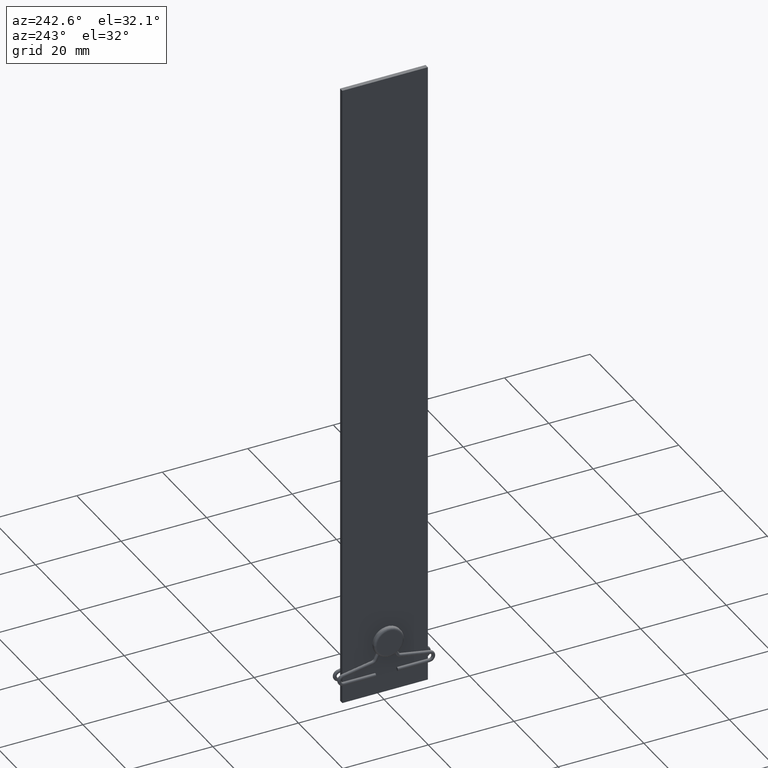
[diagram: clean part render]
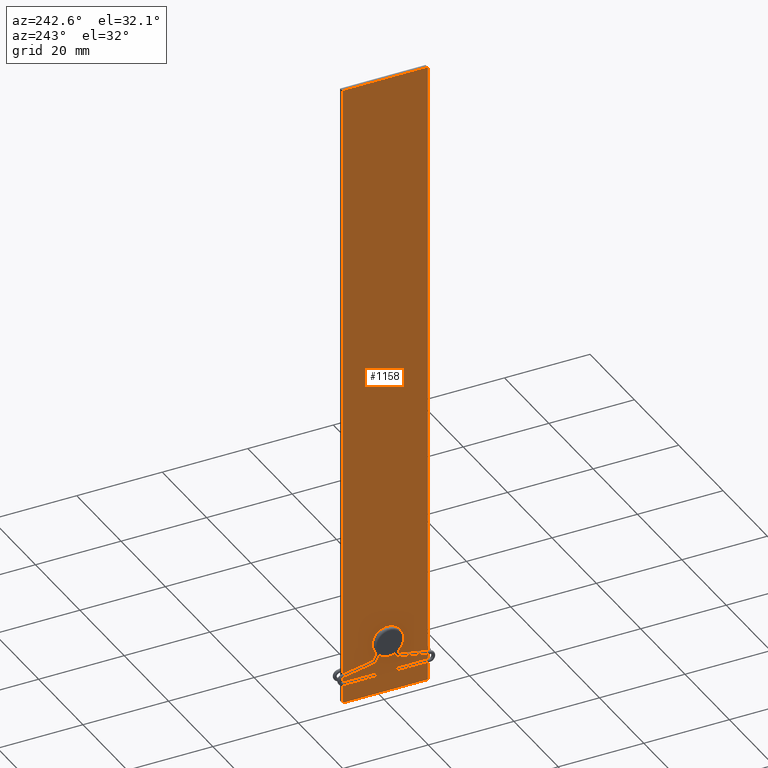
[diagram: same view with one face highlighted and labeled with its STEP entity id]
A machine part, auxiliary view. The second image highlights one B-rep face of the part: STEP entity #1158.
In plain terms, the highlighted planar face has unit normal (1, 0, -0).
Its self-contained STEP definition (entity closure, byte-faithful):
#10 = VERTEX_POINT ( 'NONE', #123 ) ;
#11 = EDGE_CURVE ( 'NONE', #1700, #1513, #2385, .T. ) ;
#42 = PLANE ( 'NONE',  #2883 ) ;
#53 = VECTOR ( 'NONE', #580, 1000.000000000000000 ) ;
#123 = CARTESIAN_POINT ( 'NONE',  ( -0.4999999999999987232, -10.00000000000000000, 150.0000000000000000 ) ) ;
#232 = CARTESIAN_POINT ( 'NONE',  ( -0.5000000000000012212, 10.00000000000000000, 150.0000000000000000 ) ) ;
#278 = DIRECTION ( 'NONE',  ( 1.000000000000000000, 1.246832498358330099E-16, -0.000000000000000000 ) ) ;
#396 = AXIS2_PLACEMENT_3D ( 'NONE', #1000, #1444, #2424 ) ;
#408 = ORIENTED_EDGE ( 'NONE', *, *, #2268, .F. ) ;
#424 = EDGE_LOOP ( 'NONE', ( #2773, #2246, #408, #1952 ) ) ;
#442 = VECTOR ( 'NONE', #2723, 1000.000000000000000 ) ;
#505 = DIRECTION ( 'NONE',  ( 1.246832498358330099E-16, -1.000000000000000000, 0.000000000000000000 ) ) ;
#526 = VERTEX_POINT ( 'NONE', #2019 ) ;
#532 = CARTESIAN_POINT ( 'NONE',  ( -0.5000000000000012212, 10.00000000000000000, 0.000000000000000000 ) ) ;
#560 = EDGE_CURVE ( 'NONE', #1583, #3128, #1317, .T. ) ;
#580 = DIRECTION ( 'NONE',  ( -0.000000000000000000, -0.000000000000000000, -1.000000000000000000 ) ) ;
#957 = DIRECTION ( 'NONE',  ( -1.000000000000000000, -1.246832498358330099E-16, 0.000000000000000000 ) ) ;
#975 = CARTESIAN_POINT ( 'NONE',  ( -0.5000000000000000000, 1.999999999999999556, 13.00000000000000000 ) ) ;
#1000 = CARTESIAN_POINT ( 'NONE',  ( -0.4999999999999997780, 6.234162491791652961E-17, 13.00000000000000000 ) ) ;
#1030 = CARTESIAN_POINT ( 'NONE',  ( -0.5000000000000012212, 10.00000000000000000, 150.0000000000000000 ) ) ;
#1050 = CARTESIAN_POINT ( 'NONE',  ( -0.4999999999999995559, -1.999999999999999556, 13.00000000000000000 ) ) ;
#1056 = CARTESIAN_POINT ( 'NONE',  ( -0.5000000000000012212, 10.00000000000000000, 0.000000000000000000 ) ) ;
#1104 = EDGE_CURVE ( 'NONE', #3128, #526, #2267, .T. ) ;
#1114 = DIRECTION ( 'NONE',  ( 1.246832498358330099E-16, -1.000000000000000000, 0.000000000000000000 ) ) ;
#1126 = EDGE_CURVE ( 'NONE', #10, #526, #2743, .T. ) ;
#1158 = ADVANCED_FACE ( 'NONE', ( #2211, #2924 ), #42, .F. ) ;
#1317 = LINE ( 'NONE', #2804, #53 ) ;
#1326 = ORIENTED_EDGE ( 'NONE', *, *, #1594, .F. ) ;
#1444 = DIRECTION ( 'NONE',  ( -1.000000000000000000, -1.246832498358330099E-16, 0.000000000000000000 ) ) ;
#1513 = VERTEX_POINT ( 'NONE', #975 ) ;
#1583 = VERTEX_POINT ( 'NONE', #232 ) ;
#1594 = EDGE_CURVE ( 'NONE', #1513, #1700, #3136, .T. ) ;
#1700 = VERTEX_POINT ( 'NONE', #1050 ) ;
#1727 = AXIS2_PLACEMENT_3D ( 'NONE', #2644, #957, #1923 ) ;
#1831 = VECTOR ( 'NONE', #1114, 1000.000000000000000 ) ;
#1923 = DIRECTION ( 'NONE',  ( -1.084202172485504681E-16, 1.000000000000000000, 0.000000000000000000 ) ) ;
#1952 = ORIENTED_EDGE ( 'NONE', *, *, #560, .T. ) ;
#2019 = CARTESIAN_POINT ( 'NONE',  ( -0.4999999999999987232, -10.00000000000000000, 0.000000000000000000 ) ) ;
#2165 = EDGE_LOOP ( 'NONE', ( #2657, #1326 ) ) ;
#2211 = FACE_BOUND ( 'NONE', #2165, .T. ) ;
#2246 = ORIENTED_EDGE ( 'NONE', *, *, #1126, .F. ) ;
#2251 = CARTESIAN_POINT ( 'NONE',  ( -0.4999999999999987232, -10.00000000000000000, 150.0000000000000000 ) ) ;
#2267 = LINE ( 'NONE', #1056, #2332 ) ;
#2268 = EDGE_CURVE ( 'NONE', #1583, #10, #3061, .T. ) ;
#2332 = VECTOR ( 'NONE', #505, 1000.000000000000000 ) ;
#2385 = CIRCLE ( 'NONE', #1727, 1.999999999999999556 ) ;
#2424 = DIRECTION ( 'NONE',  ( -1.084202172485504681E-16, 1.000000000000000000, 0.000000000000000000 ) ) ;
#2644 = CARTESIAN_POINT ( 'NONE',  ( -0.4999999999999997780, 6.234162491791652961E-17, 13.00000000000000000 ) ) ;
#2657 = ORIENTED_EDGE ( 'NONE', *, *, #11, .F. ) ;
#2723 = DIRECTION ( 'NONE',  ( -0.000000000000000000, -0.000000000000000000, -1.000000000000000000 ) ) ;
#2743 = LINE ( 'NONE', #2251, #442 ) ;
#2773 = ORIENTED_EDGE ( 'NONE', *, *, #1104, .T. ) ;
#2796 = CARTESIAN_POINT ( 'NONE',  ( -0.5000000000000012212, 10.00000000000000000, 150.0000000000000000 ) ) ;
#2804 = CARTESIAN_POINT ( 'NONE',  ( -0.5000000000000012212, 10.00000000000000000, 150.0000000000000000 ) ) ;
#2883 = AXIS2_PLACEMENT_3D ( 'NONE', #1030, #278, #2996 ) ;
#2924 = FACE_OUTER_BOUND ( 'NONE', #424, .T. ) ;
#2996 = DIRECTION ( 'NONE',  ( -1.246832498358330099E-16, 1.000000000000000000, 0.000000000000000000 ) ) ;
#3061 = LINE ( 'NONE', #2796, #1831 ) ;
#3128 = VERTEX_POINT ( 'NONE', #532 ) ;
#3136 = CIRCLE ( 'NONE', #396, 1.999999999999999556 ) ;